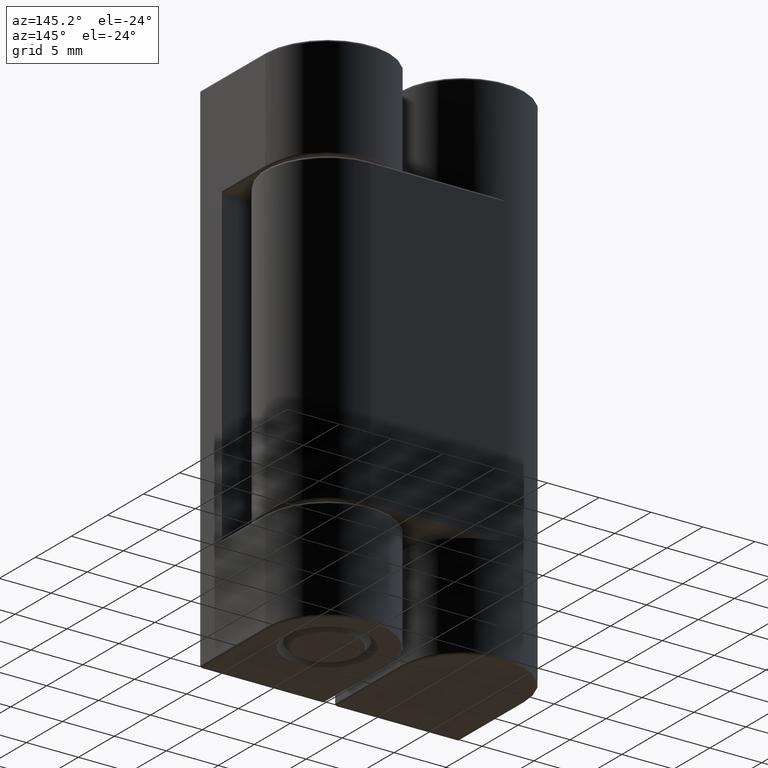
[diagram: clean part render]
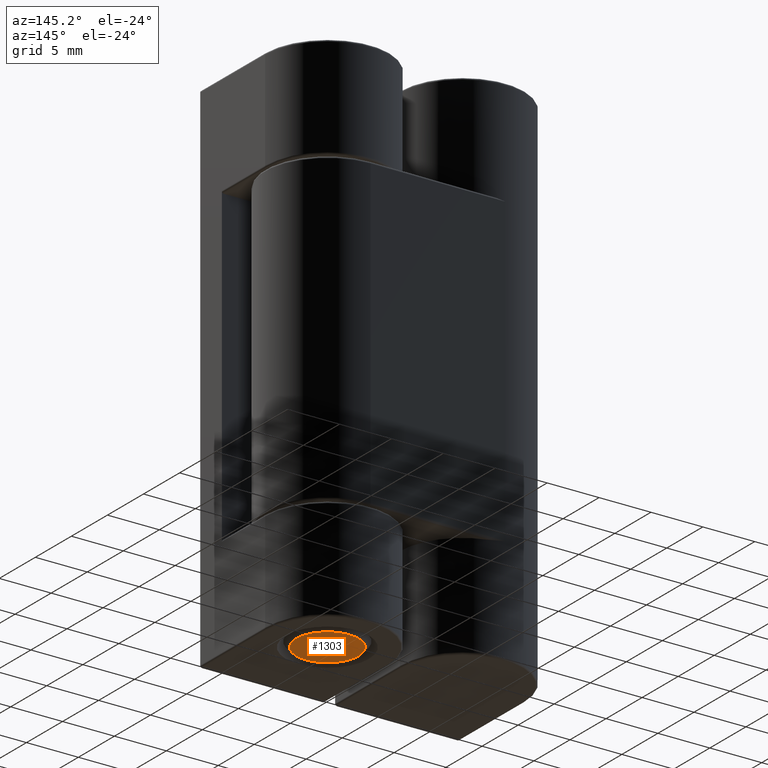
[diagram: same view with one face highlighted and labeled with its STEP entity id]
A machine part, auxiliary view. The second image highlights one B-rep face of the part: STEP entity #1303.
In plain terms, the highlighted planar face has unit normal (0, 0, 1).
Its self-contained STEP definition (entity closure, byte-faithful):
#108=PLANE('',#1456);
#183=FACE_OUTER_BOUND('',#283,.T.);
#283=EDGE_LOOP('',(#1196));
#554=CIRCLE('',#1453,3.);
#672=VERTEX_POINT('',#2307);
#847=EDGE_CURVE('',#672,#672,#554,.T.);
#1196=ORIENTED_EDGE('',*,*,#847,.F.);
#1303=ADVANCED_FACE('',(#183),#108,.F.);
#1453=AXIS2_PLACEMENT_3D('',#2308,#1851,#1852);
#1456=AXIS2_PLACEMENT_3D('',#2312,#1857,#1858);
#1851=DIRECTION('center_axis',(0.,0.,1.));
#1852=DIRECTION('ref_axis',(-1.,0.,0.));
#1857=DIRECTION('center_axis',(0.,0.,1.));
#1858=DIRECTION('ref_axis',(1.,0.,0.));
#2307=CARTESIAN_POINT('',(0.999999999999832,-2.00000000000019,-50.));
#2308=CARTESIAN_POINT('Origin',(-2.00000000000017,-2.00000000000019,-50.));
#2312=CARTESIAN_POINT('Origin',(-2.00000000000017,-2.00000000000019,-50.));